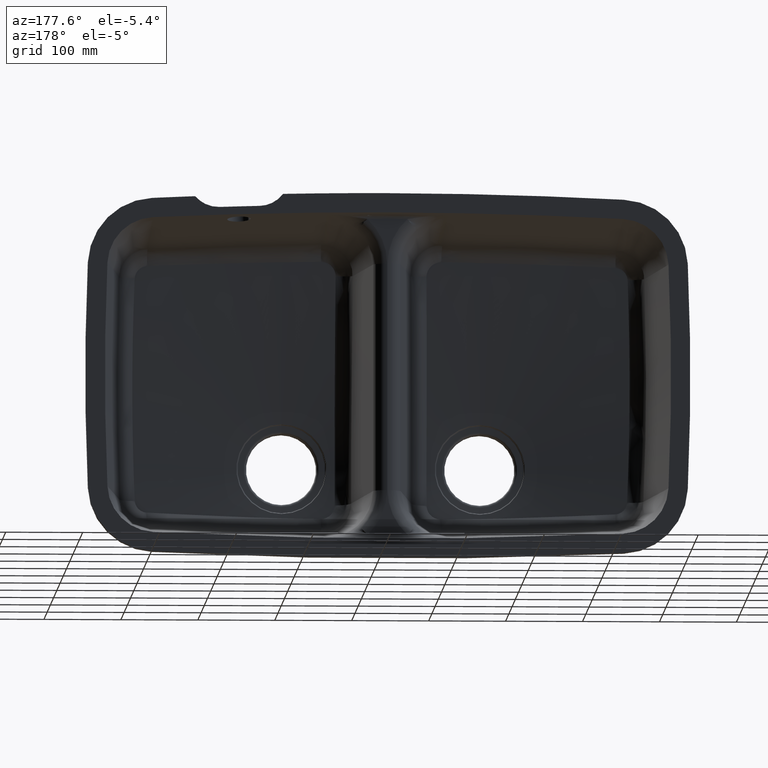
[diagram: clean part render]
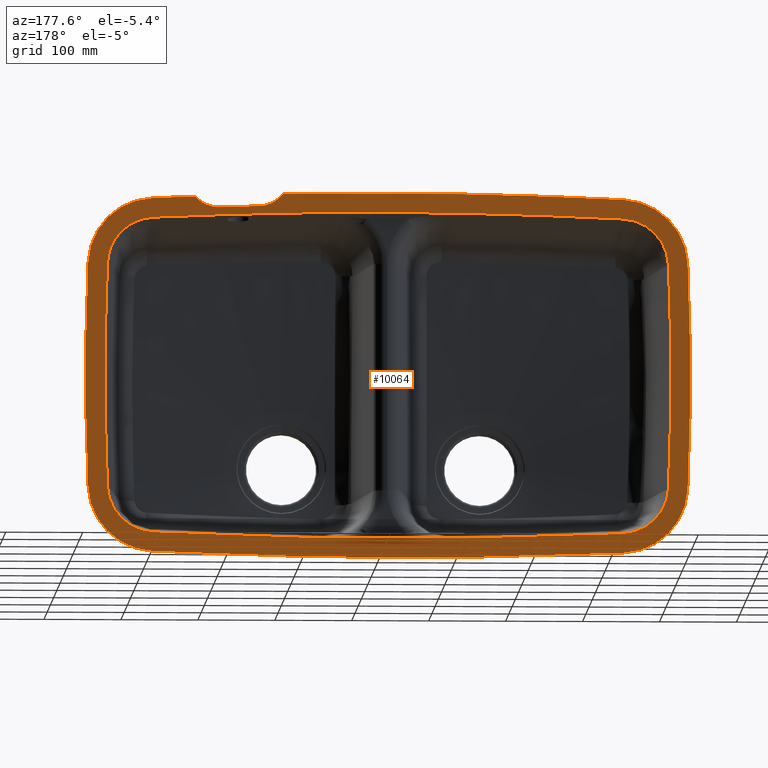
[diagram: same view with one face highlighted and labeled with its STEP entity id]
A machine part, auxiliary view. The second image highlights one B-rep face of the part: STEP entity #10064.
In plain terms, the highlighted planar face has unit normal (0, 1, 0).
Its self-contained STEP definition (entity closure, byte-faithful):
#10 = DIRECTION ( 'NONE',  ( 0.0000000000000000000, -0.0000000000000000000, 1.000000000000000000 ) ) ;
#18 = CIRCLE ( 'NONE', #722, 6348.989999999998000 ) ;
#35 = CARTESIAN_POINT ( 'NONE',  ( -123.3213782233549300, 227.4156353095725900, 230.3040975937891500 ) ) ;
#92 = AXIS2_PLACEMENT_3D ( 'NONE', #9496, #3945, #7800 ) ;
#97 = VERTEX_POINT ( 'NONE', #4584 ) ;
#98 = EDGE_CURVE ( 'NONE', #8808, #97, #18, .T. ) ;
#169 = EDGE_CURVE ( 'NONE', #6633, #8619, #635, .T. ) ;
#219 = CARTESIAN_POINT ( 'NONE',  ( 418.2200434486198900, 227.4156353095725400, 221.6275811194996100 ) ) ;
#423 = AXIS2_PLACEMENT_3D ( 'NONE', #6126, #3825, #8578 ) ;
#459 = AXIS2_PLACEMENT_3D ( 'NONE', #4621, #10101, #476 ) ;
#476 = DIRECTION ( 'NONE',  ( 0.0000000000000000000, 0.0000000000000000000, 1.000000000000000000 ) ) ;
#487 = DIRECTION ( 'NONE',  ( 0.0000000000000000000, 0.0000000000000000000, 1.000000000000000000 ) ) ;
#488 = ORIENTED_EDGE ( 'NONE', *, *, #3256, .T. ) ;
#635 = CIRCLE ( 'NONE', #6489, 62.18599999999885600 ) ;
#640 = EDGE_CURVE ( 'NONE', #8619, #8422, #3220, .T. ) ;
#648 = EDGE_CURVE ( 'NONE', #4679, #8808, #1578, .T. ) ;
#712 = DIRECTION ( 'NONE',  ( 0.0000000000000000000, 1.000000000000000000, 0.0000000000000000000 ) ) ;
#722 = AXIS2_PLACEMENT_3D ( 'NONE', #6213, #3144, #6351 ) ;
#741 = CARTESIAN_POINT ( 'NONE',  ( -1123.367811455964100, 227.4156353095725900, -71.56469586908532700 ) ) ;
#748 = CIRCLE ( 'NONE', #1668, 3283.821999999998800 ) ;
#792 = VERTEX_POINT ( 'NONE', #5989 ) ;
#818 = ORIENTED_EDGE ( 'NONE', *, *, #3278, .T. ) ;
#830 = CIRCLE ( 'NONE', #423, 3283.821999999998800 ) ;
#833 = ORIENTED_EDGE ( 'NONE', *, *, #1250, .T. ) ;
#930 = AXIS2_PLACEMENT_3D ( 'NONE', #6667, #5910, #1355 ) ;
#981 = CIRCLE ( 'NONE', #9138, 3308.896999999999000 ) ;
#1034 = DIRECTION ( 'NONE',  ( 0.0000000000000000000, 1.000000000000000000, 0.0000000000000000000 ) ) ;
#1039 = CARTESIAN_POINT ( 'NONE',  ( 183.3766767295733200, 227.4156353095725900, -6111.273807248827300 ) ) ;
#1113 = DIRECTION ( 'NONE',  ( 0.0000000000000000000, 1.000000000000000000, 0.0000000000000000000 ) ) ;
#1123 = CARTESIAN_POINT ( 'NONE',  ( 485.8594503585015300, 227.4156353095725900, 143.1449699916879600 ) ) ;
#1210 = CARTESIAN_POINT ( 'NONE',  ( -122.1100904865692500, 227.4156353095725900, -205.2479857690017900 ) ) ;
#1250 = EDGE_CURVE ( 'NONE', #2072, #6777, #6004, .T. ) ;
#1292 = VERTEX_POINT ( 'NONE', #4694 ) ;
#1350 = AXIS2_PLACEMENT_3D ( 'NONE', #8631, #3258, #3911 ) ;
#1355 = DIRECTION ( 'NONE',  ( 0.0000000000000000000, 0.0000000000000000000, 1.000000000000000000 ) ) ;
#1431 = CARTESIAN_POINT ( 'NONE',  ( 323.4204637878955300, 227.4156353095726800, 231.7189541482877100 ) ) ;
#1485 = CARTESIAN_POINT ( 'NONE',  ( 3099.348426729574800, 227.4156353095725900, 0.005192751172421966300 ) ) ;
#1533 = AXIS2_PLACEMENT_3D ( 'NONE', #8134, #6519, #2742 ) ;
#1577 = ORIENTED_EDGE ( 'NONE', *, *, #6063, .F. ) ;
#1578 = B_SPLINE_CURVE_WITH_KNOTS ( 'NONE', 3,
 ( #3377, #2704, #4943, #8822, #4918, #5013, #219, #7251, #8064, #4099, #2597, #6513, #8098, #5045 ),
 .UNSPECIFIED., .F., .F.,
 ( 4, 2, 2, 2, 2, 2, 4 ),
 ( 0.0000000000000000000, 0.008875105406135286300, 0.01331265810920300400, 0.01775021081227072200, 0.02662531621840630600, 0.03106286892147404000, 0.03550042162454177000 ),
 .UNSPECIFIED. ) ;
#1581 = EDGE_CURVE ( 'NONE', #6236, #6633, #748, .T. ) ;
#1614 = PLANE ( 'NONE',  #6226 ) ;
#1615 = DIRECTION ( 'NONE',  ( 0.0000000000000000000, 1.000000000000000000, 0.0000000000000000000 ) ) ;
#1621 = EDGE_CURVE ( 'NONE', #5800, #2072, #2235, .T. ) ;
#1668 = AXIS2_PLACEMENT_3D ( 'NONE', #1485, #6934, #5390 ) ;
#1737 = CARTESIAN_POINT ( 'NONE',  ( 350.2793439686723200, 227.4156353095725900, 220.4718258837482400 ) ) ;
#1760 = VERTEX_POINT ( 'NONE', #7555 ) ;
#1812 = DIRECTION ( 'NONE',  ( 0.0000000000000000000, 0.0000000000000000000, 1.000000000000000000 ) ) ;
#1976 = CIRCLE ( 'NONE', #6828, 6323.914999999999100 ) ;
#2015 = EDGE_CURVE ( 'NONE', #4420, #3639, #7335, .T. ) ;
#2019 = AXIS2_PLACEMENT_3D ( 'NONE', #4031, #4843, #2388 ) ;
#2072 = VERTEX_POINT ( 'NONE', #35 ) ;
#2187 = CARTESIAN_POINT ( 'NONE',  ( 331.7930982026389900, 227.4156353095725600, 225.5473455839138200 ) ) ;
#2235 = CIRCLE ( 'NONE', #7746, 87.26099999999881600 ) ;
#2279 = EDGE_CURVE ( 'NONE', #8422, #792, #1976, .T. ) ;
#2286 = DIRECTION ( 'NONE',  ( 0.0000000000000000000, 0.0000000000000000000, 1.000000000000000000 ) ) ;
#2308 = DIRECTION ( 'NONE',  ( 0.0000000000000000000, 0.0000000000000000000, 1.000000000000000000 ) ) ;
#2329 = DIRECTION ( 'NONE',  ( 0.0000000000000000000, 0.0000000000000000000, 1.000000000000000000 ) ) ;
#2388 = DIRECTION ( 'NONE',  ( 0.0000000000000000000, 0.0000000000000000000, 1.000000000000000000 ) ) ;
#2419 = EDGE_CURVE ( 'NONE', #6290, #7468, #981, .T. ) ;
#2520 = AXIS2_PLACEMENT_3D ( 'NONE', #10103, #6181, #2308 ) ;
#2522 = CIRCLE ( 'NONE', #459, 87.26099999999908600 ) ;
#2569 = CARTESIAN_POINT ( 'NONE',  ( -181.2306860852196200, 227.4156353095725900, 145.9079420305771200 ) ) ;
#2597 = CARTESIAN_POINT ( 'NONE',  ( 429.6211472381512000, 227.4156353095725900, 228.5288003397260200 ) ) ;
#2639 = CARTESIAN_POINT ( 'NONE',  ( -119.1060968993582600, 227.4156353095725900, -143.1345844893430700 ) ) ;
#2704 = CARTESIAN_POINT ( 'NONE',  ( 405.1972603012757800, 227.4156353095725900, 218.7865319028973100 ) ) ;
#2742 = DIRECTION ( 'NONE',  ( 0.0000000000000000000, 0.0000000000000000000, 1.000000000000000000 ) ) ;
#2846 = CARTESIAN_POINT ( 'NONE',  ( 547.9840395443637800, 227.4156353095725900, 145.9079420305771200 ) ) ;
#2857 = CARTESIAN_POINT ( 'NONE',  ( -119.1060968993573700, 227.4156353095725900, 143.1449699916879600 ) ) ;
#3097 = AXIS2_PLACEMENT_3D ( 'NONE', #7351, #1034, #9712 ) ;
#3130 = CARTESIAN_POINT ( 'NONE',  ( 350.2793439686723200, 227.4156353095725900, 220.4718258837482400 ) ) ;
#3144 = DIRECTION ( 'NONE',  ( 0.0000000000000000000, 1.000000000000000000, 0.0000000000000000000 ) ) ;
#3153 = AXIS2_PLACEMENT_3D ( 'NONE', #2639, #5890, #7363 ) ;
#3166 = CARTESIAN_POINT ( 'NONE',  ( -181.2306860852205000, 227.4156353095725900, -145.8975565282321700 ) ) ;
#3220 = CIRCLE ( 'NONE', #10175, 6323.914999999999100 ) ;
#3229 = ORIENTED_EDGE ( 'NONE', *, *, #9015, .T. ) ;
#3256 = EDGE_CURVE ( 'NONE', #3639, #1292, #10169, .T. ) ;
#3258 = DIRECTION ( 'NONE',  ( 0.0000000000000000000, 1.000000000000000000, 0.0000000000000000000 ) ) ;
#3278 = EDGE_CURVE ( 'NONE', #6777, #3405, #6835, .T. ) ;
#3377 = CARTESIAN_POINT ( 'NONE',  ( 402.1981230255872800, 227.4156353095725900, 218.8902062397562000 ) ) ;
#3405 = VERTEX_POINT ( 'NONE', #8864 ) ;
#3480 = FACE_OUTER_BOUND ( 'NONE', #6610, .T. ) ;
#3639 = VERTEX_POINT ( 'NONE', #8990 ) ;
#3711 = ORIENTED_EDGE ( 'NONE', *, *, #9567, .F. ) ;
#3795 = CARTESIAN_POINT ( 'NONE',  ( 338.5127854578626600, 227.4156353095725900, 222.4568625448510500 ) ) ;
#3806 = DIRECTION ( 'NONE',  ( 0.0000000000000000000, 0.0000000000000000000, 1.000000000000000000 ) ) ;
#3825 = DIRECTION ( 'NONE',  ( 0.0000000000000000000, 1.000000000000000000, 0.0000000000000000000 ) ) ;
#3855 = CARTESIAN_POINT ( 'NONE',  ( 344.3367981065289300, 227.4156353095725900, 221.0479046567080600 ) ) ;
#3888 = CARTESIAN_POINT ( 'NONE',  ( 319.5635316994300900, 227.4156353095725900, 236.2554097483970600 ) ) ;
#3911 = DIRECTION ( 'NONE',  ( 0.0000000000000000000, 0.0000000000000000000, 1.000000000000000000 ) ) ;
#3945 = DIRECTION ( 'NONE',  ( 0.0000000000000000000, 1.000000000000000000, 0.0000000000000000000 ) ) ;
#3952 = DIRECTION ( 'NONE',  ( 0.0000000000000000000, 0.0000000000000000000, 1.000000000000000000 ) ) ;
#4018 = ORIENTED_EDGE ( 'NONE', *, *, #1621, .T. ) ;
#4031 = CARTESIAN_POINT ( 'NONE',  ( 183.3766767295748300, 227.4156353095725900, 6111.284192751170800 ) ) ;
#4098 = DIRECTION ( 'NONE',  ( 0.0000000000000000000, 0.0000000000000000000, 1.000000000000000000 ) ) ;
#4099 = CARTESIAN_POINT ( 'NONE',  ( 428.4716203321665900, 227.4156353095725600, 227.5731973163040600 ) ) ;
#4151 = ORIENTED_EDGE ( 'NONE', *, *, #9083, .F. ) ;
#4306 = ORIENTED_EDGE ( 'NONE', *, *, #9804, .T. ) ;
#4420 = VERTEX_POINT ( 'NONE', #9727 ) ;
#4584 = CARTESIAN_POINT ( 'NONE',  ( 490.0747316824962400, 227.4156353095725900, 230.3040975937897500 ) ) ;
#4611 = CARTESIAN_POINT ( 'NONE',  ( -119.1060968993573700, 227.4156353095725900, 143.1449699916879600 ) ) ;
#4621 = CARTESIAN_POINT ( 'NONE',  ( 485.8594503585015300, 227.4156353095725900, 143.1449699916879600 ) ) ;
#4679 = VERTEX_POINT ( 'NONE', #9414 ) ;
#4694 = CARTESIAN_POINT ( 'NONE',  ( -206.2809236601658300, 227.4156353095725900, -147.0116581568164500 ) ) ;
#4709 = CIRCLE ( 'NONE', #930, 87.26099999999870200 ) ;
#4716 = ORIENTED_EDGE ( 'NONE', *, *, #169, .F. ) ;
#4820 = ORIENTED_EDGE ( 'NONE', *, *, #2419, .T. ) ;
#4835 = FACE_BOUND ( 'NONE', #6557, .T. ) ;
#4843 = DIRECTION ( 'NONE',  ( 0.0000000000000000000, 1.000000000000000000, 0.0000000000000000000 ) ) ;
#4900 = CARTESIAN_POINT ( 'NONE',  ( -122.1100904865739800, 227.4156353095725900, 205.2583712713457700 ) ) ;
#4918 = CARTESIAN_POINT ( 'NONE',  ( 413.9600826581464600, 227.4156353095726500, 220.2148509094230300 ) ) ;
#4943 = CARTESIAN_POINT ( 'NONE',  ( 408.1510392756004000, 227.4156353095726200, 219.0191625132342200 ) ) ;
#5013 = CARTESIAN_POINT ( 'NONE',  ( 416.8251287069666100, 227.4156353095726500, 221.1053836221075200 ) ) ;
#5045 = CARTESIAN_POINT ( 'NONE',  ( 433.8177817204278900, 227.4156353095725900, 232.7748427089385900 ) ) ;
#5055 = DIRECTION ( 'NONE',  ( 0.0000000000000000000, 1.000000000000000000, 0.0000000000000000000 ) ) ;
#5204 = DIRECTION ( 'NONE',  ( 0.0000000000000000000, 1.000000000000000000, 0.0000000000000000000 ) ) ;
#5314 = CARTESIAN_POINT ( 'NONE',  ( -206.2809236601654300, 227.4156353095725900, 147.0220436591585600 ) ) ;
#5318 = CIRCLE ( 'NONE', #3153, 62.18599999999849400 ) ;
#5344 = CARTESIAN_POINT ( 'NONE',  ( 321.3765551806099000, 227.4156353095726200, 233.8641996093652700 ) ) ;
#5390 = DIRECTION ( 'NONE',  ( 0.0000000000000000000, 0.0000000000000000000, 1.000000000000000000 ) ) ;
#5451 = CIRCLE ( 'NONE', #2019, 6323.914999999998100 ) ;
#5484 = CARTESIAN_POINT ( 'NONE',  ( 183.3766767295733200, 227.4156353095725900, -6111.273807248827300 ) ) ;
#5586 = CARTESIAN_POINT ( 'NONE',  ( -2732.595073270430500, 227.4156353095725900, 0.005192751172421966300 ) ) ;
#5800 = VERTEX_POINT ( 'NONE', #5314 ) ;
#5864 = CARTESIAN_POINT ( 'NONE',  ( 573.0342771193090800, 227.4156353095725900, 147.0220436591615100 ) ) ;
#5890 = DIRECTION ( 'NONE',  ( 0.0000000000000000000, 1.000000000000000000, 0.0000000000000000000 ) ) ;
#5910 = DIRECTION ( 'NONE',  ( 0.0000000000000000000, 1.000000000000000000, 0.0000000000000000000 ) ) ;
#5989 = CARTESIAN_POINT ( 'NONE',  ( 488.8634439457181300, 227.4156353095725900, 205.2583712713459600 ) ) ;
#6004 = CIRCLE ( 'NONE', #2520, 6348.989999999998000 ) ;
#6008 = ORIENTED_EDGE ( 'NONE', *, *, #648, .T. ) ;
#6021 = ORIENTED_EDGE ( 'NONE', *, *, #640, .F. ) ;
#6063 = EDGE_CURVE ( 'NONE', #7175, #1760, #830, .T. ) ;
#6112 = EDGE_CURVE ( 'NONE', #3405, #8681, #9594, .T. ) ;
#6126 = CARTESIAN_POINT ( 'NONE',  ( -2732.595073270430500, 227.4156353095725900, 0.005192751172421966300 ) ) ;
#6166 = CIRCLE ( 'NONE', #1533, 6333.944999999997000 ) ;
#6181 = DIRECTION ( 'NONE',  ( 0.0000000000000000000, 1.000000000000000000, 0.0000000000000000000 ) ) ;
#6213 = CARTESIAN_POINT ( 'NONE',  ( 183.3766767295733200, 227.4156353095725900, -6111.273807248827300 ) ) ;
#6226 = AXIS2_PLACEMENT_3D ( 'NONE', #741, #8726, #10 ) ;
#6236 = VERTEX_POINT ( 'NONE', #3166 ) ;
#6290 = VERTEX_POINT ( 'NONE', #5864 ) ;
#6351 = DIRECTION ( 'NONE',  ( 0.0000000000000000000, 0.0000000000000000000, 1.000000000000000000 ) ) ;
#6489 = AXIS2_PLACEMENT_3D ( 'NONE', #2857, #5204, #487 ) ;
#6513 = CARTESIAN_POINT ( 'NONE',  ( 431.8049524862908600, 227.4156353095725600, 230.5601723015161600 ) ) ;
#6519 = DIRECTION ( 'NONE',  ( 0.0000000000000000000, 1.000000000000000000, -0.0000000000000000000 ) ) ;
#6553 = AXIS2_PLACEMENT_3D ( 'NONE', #8583, #8648, #2286 ) ;
#6557 = EDGE_LOOP ( 'NONE', ( #3711, #1577, #4151, #8540, #6021, #4716, #9898, #7571, #9035 ) ) ;
#6589 = DIRECTION ( 'NONE',  ( 0.0000000000000000000, 0.0000000000000000000, 1.000000000000000000 ) ) ;
#6610 = EDGE_LOOP ( 'NONE', ( #833, #818, #9037, #3229, #6008, #9832, #10006, #4820, #4306, #6790, #488, #7725, #4018 ) ) ;
#6633 = VERTEX_POINT ( 'NONE', #2569 ) ;
#6667 = CARTESIAN_POINT ( 'NONE',  ( 485.8594503585024400, 227.4156353095725900, -143.1345844893430700 ) ) ;
#6767 = CARTESIAN_POINT ( 'NONE',  ( 183.3766767295733200, 227.4156353095725900, 212.6411927511711000 ) ) ;
#6777 = VERTEX_POINT ( 'NONE', #7500 ) ;
#6789 = CARTESIAN_POINT ( 'NONE',  ( 433.8177817204278900, 227.4156353095725900, 232.7748427089385900 ) ) ;
#6790 = ORIENTED_EDGE ( 'NONE', *, *, #2015, .T. ) ;
#6828 = AXIS2_PLACEMENT_3D ( 'NONE', #5484, #1615, #2329 ) ;
#6835 = CIRCLE ( 'NONE', #92, 6348.989999999998000 ) ;
#6877 = EDGE_CURVE ( 'NONE', #9607, #8462, #5451, .T. ) ;
#6888 = CARTESIAN_POINT ( 'NONE',  ( 328.0111055073101600, 227.4156353095725900, 227.9641281669083000 ) ) ;
#6909 = CIRCLE ( 'NONE', #7869, 62.18599999999885600 ) ;
#6934 = DIRECTION ( 'NONE',  ( 0.0000000000000000000, 1.000000000000000000, 0.0000000000000000000 ) ) ;
#6985 = CARTESIAN_POINT ( 'NONE',  ( 347.2909227135343700, 227.4156353095726200, 220.6350553090683500 ) ) ;
#7175 = VERTEX_POINT ( 'NONE', #2846 ) ;
#7251 = CARTESIAN_POINT ( 'NONE',  ( 422.2902081336067700, 227.4156353095726200, 223.4142282211524000 ) ) ;
#7259 = CIRCLE ( 'NONE', #6553, 62.18599999999849400 ) ;
#7335 = CIRCLE ( 'NONE', #7549, 6348.989999999997100 ) ;
#7351 = CARTESIAN_POINT ( 'NONE',  ( 3099.348426729574800, 227.4156353095725900, 0.005192751172421966300 ) ) ;
#7363 = DIRECTION ( 'NONE',  ( 0.0000000000000000000, 0.0000000000000000000, 1.000000000000000000 ) ) ;
#7468 = VERTEX_POINT ( 'NONE', #8858 ) ;
#7500 = CARTESIAN_POINT ( 'NONE',  ( 183.3766767295733200, 227.4156353095725900, 237.7161927511704100 ) ) ;
#7549 = AXIS2_PLACEMENT_3D ( 'NONE', #10111, #8538, #3952 ) ;
#7555 = CARTESIAN_POINT ( 'NONE',  ( 547.9840395443644600, 227.4156353095725900, -145.8975565282321700 ) ) ;
#7571 = ORIENTED_EDGE ( 'NONE', *, *, #8970, .F. ) ;
#7638 = CARTESIAN_POINT ( 'NONE',  ( 335.7455491307649100, 227.4156353095725900, 223.5134245853940100 ) ) ;
#7725 = ORIENTED_EDGE ( 'NONE', *, *, #8185, .T. ) ;
#7746 = AXIS2_PLACEMENT_3D ( 'NONE', #4611, #712, #3806 ) ;
#7800 = DIRECTION ( 'NONE',  ( 0.0000000000000000000, 0.0000000000000000000, 1.000000000000000000 ) ) ;
#7869 = AXIS2_PLACEMENT_3D ( 'NONE', #1123, #5055, #6589 ) ;
#8001 = DIRECTION ( 'NONE',  ( 0.0000000000000000000, 1.000000000000000000, 0.0000000000000000000 ) ) ;
#8064 = CARTESIAN_POINT ( 'NONE',  ( 424.8550038879065500, 227.4156353095725400, 224.8969023581342100 ) ) ;
#8098 = CARTESIAN_POINT ( 'NONE',  ( 432.8401650582535500, 227.4156353095726500, 231.6366340496711300 ) ) ;
#8134 = CARTESIAN_POINT ( 'NONE',  ( 183.3766767295733200, 227.4156353095725900, -6111.273807248827300 ) ) ;
#8185 = EDGE_CURVE ( 'NONE', #1292, #5800, #8772, .T. ) ;
#8422 = VERTEX_POINT ( 'NONE', #6767 ) ;
#8462 = VERTEX_POINT ( 'NONE', #1210 ) ;
#8509 = CARTESIAN_POINT ( 'NONE',  ( 330.5080371004945100, 227.4156353095725900, 226.3014934946326400 ) ) ;
#8538 = DIRECTION ( 'NONE',  ( 0.0000000000000000000, 1.000000000000000000, 0.0000000000000000000 ) ) ;
#8540 = ORIENTED_EDGE ( 'NONE', *, *, #2279, .F. ) ;
#8542 = CARTESIAN_POINT ( 'NONE',  ( 326.8212011031629300, 227.4156353095725900, 228.8578316527138800 ) ) ;
#8578 = DIRECTION ( 'NONE',  ( 0.0000000000000000000, 0.0000000000000000000, 1.000000000000000000 ) ) ;
#8583 = CARTESIAN_POINT ( 'NONE',  ( 485.8594503585024400, 227.4156353095725900, -143.1345844893430700 ) ) ;
#8615 = CARTESIAN_POINT ( 'NONE',  ( 488.8634439457133600, 227.4156353095725900, -205.2479857690017900 ) ) ;
#8619 = VERTEX_POINT ( 'NONE', #4900 ) ;
#8631 = CARTESIAN_POINT ( 'NONE',  ( -119.1060968993582600, 227.4156353095725900, -143.1345844893430700 ) ) ;
#8648 = DIRECTION ( 'NONE',  ( 0.0000000000000000000, 1.000000000000000000, 0.0000000000000000000 ) ) ;
#8681 = VERTEX_POINT ( 'NONE', #1737 ) ;
#8726 = DIRECTION ( 'NONE',  ( 0.0000000000000000000, 1.000000000000000000, 0.0000000000000000000 ) ) ;
#8772 = CIRCLE ( 'NONE', #3097, 3308.896999999999500 ) ;
#8808 = VERTEX_POINT ( 'NONE', #6789 ) ;
#8822 = CARTESIAN_POINT ( 'NONE',  ( 412.5160989566334700, 227.4156353095725400, 219.8545586877355600 ) ) ;
#8833 = EDGE_CURVE ( 'NONE', #97, #6290, #2522, .T. ) ;
#8858 = CARTESIAN_POINT ( 'NONE',  ( 573.0342771193088500, 227.4156353095725900, -147.0116581568177600 ) ) ;
#8864 = CARTESIAN_POINT ( 'NONE',  ( 319.5635316994300900, 227.4156353095725900, 236.2554097483970600 ) ) ;
#8970 = EDGE_CURVE ( 'NONE', #8462, #6236, #5318, .T. ) ;
#8990 = CARTESIAN_POINT ( 'NONE',  ( -123.3213782233478400, 227.4156353095725900, -230.2937120914447700 ) ) ;
#9015 = EDGE_CURVE ( 'NONE', #8681, #4679, #6166, .T. ) ;
#9035 = ORIENTED_EDGE ( 'NONE', *, *, #6877, .F. ) ;
#9037 = ORIENTED_EDGE ( 'NONE', *, *, #6112, .T. ) ;
#9083 = EDGE_CURVE ( 'NONE', #792, #7175, #6909, .T. ) ;
#9138 = AXIS2_PLACEMENT_3D ( 'NONE', #5586, #8001, #4098 ) ;
#9298 = CARTESIAN_POINT ( 'NONE',  ( 342.8693031336794100, 227.4156353095725600, 221.3375292656382100 ) ) ;
#9334 = CARTESIAN_POINT ( 'NONE',  ( 348.7793523655998300, 227.4156353095725900, 220.5113651536271700 ) ) ;
#9414 = CARTESIAN_POINT ( 'NONE',  ( 402.1981230255872800, 227.4156353095725900, 218.8902062397562000 ) ) ;
#9496 = CARTESIAN_POINT ( 'NONE',  ( 183.3766767295733200, 227.4156353095725900, -6111.273807248827300 ) ) ;
#9567 = EDGE_CURVE ( 'NONE', #1760, #9607, #7259, .T. ) ;
#9594 = B_SPLINE_CURVE_WITH_KNOTS ( 'NONE', 3,
 ( #3888, #5344, #1431, #8542, #6888, #8509, #2187, #7638, #3795, #9298, #3855, #6985, #9334, #3130 ),
 .UNSPECIFIED., .F., .F.,
 ( 4, 2, 2, 2, 2, 2, 4 ),
 ( 0.0000000000000000000, 0.008875303075745336400, 0.01331295461361806800, 0.01775060615149080100, 0.02662590922723626100, 0.03106356076510891400, 0.03550121230298156800 ),
 .UNSPECIFIED. ) ;
#9607 = VERTEX_POINT ( 'NONE', #8615 ) ;
#9712 = DIRECTION ( 'NONE',  ( 0.0000000000000000000, 0.0000000000000000000, 1.000000000000000000 ) ) ;
#9727 = CARTESIAN_POINT ( 'NONE',  ( 490.0747316824919200, 227.4156353095725900, -230.2937120914444900 ) ) ;
#9804 = EDGE_CURVE ( 'NONE', #7468, #4420, #4709, .T. ) ;
#9832 = ORIENTED_EDGE ( 'NONE', *, *, #98, .T. ) ;
#9898 = ORIENTED_EDGE ( 'NONE', *, *, #1581, .F. ) ;
#10006 = ORIENTED_EDGE ( 'NONE', *, *, #8833, .T. ) ;
#10064 = ADVANCED_FACE ( 'NONE', ( #4835, #3480 ), #1614, .T. ) ;
#10101 = DIRECTION ( 'NONE',  ( 0.0000000000000000000, 1.000000000000000000, 0.0000000000000000000 ) ) ;
#10103 = CARTESIAN_POINT ( 'NONE',  ( 183.3766767295733200, 227.4156353095725900, -6111.273807248827300 ) ) ;
#10111 = CARTESIAN_POINT ( 'NONE',  ( 183.3766767295748300, 227.4156353095725900, 6111.284192751170800 ) ) ;
#10169 = CIRCLE ( 'NONE', #1350, 87.26099999999897200 ) ;
#10175 = AXIS2_PLACEMENT_3D ( 'NONE', #1039, #1113, #1812 ) ;